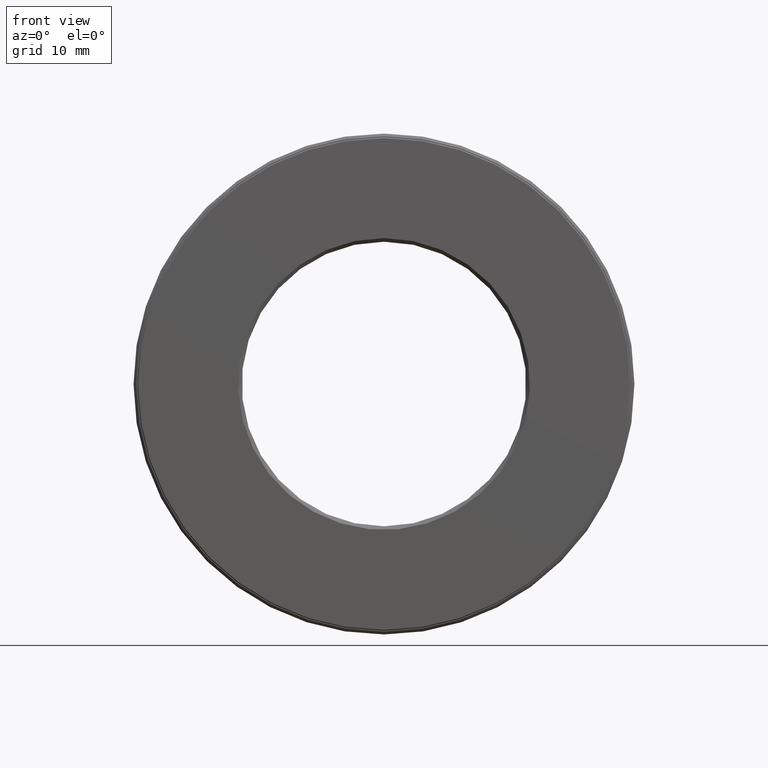
[diagram: clean part render]
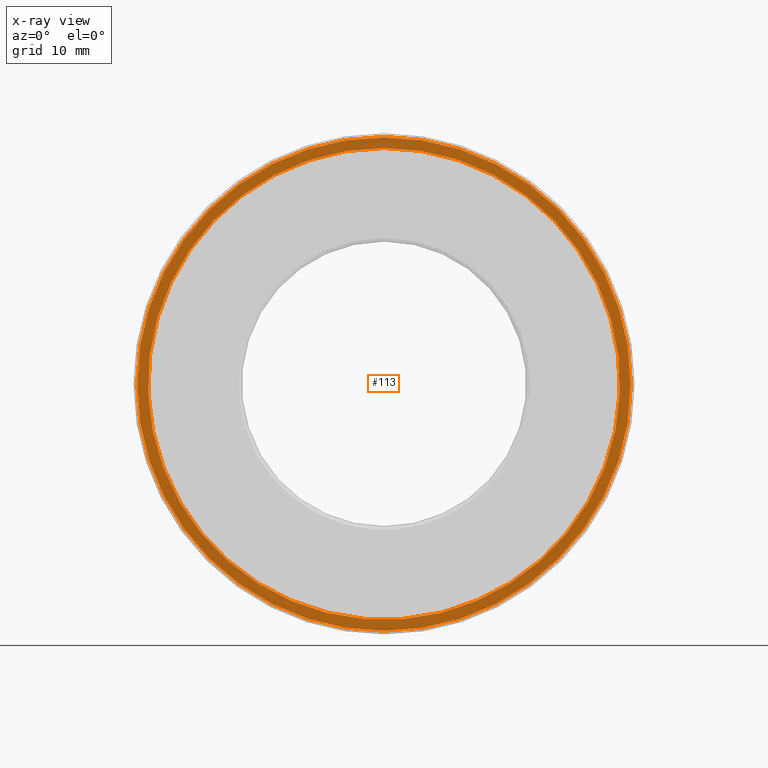
[diagram: x-ray — body ghosted, one internal face saturated and labeled with its STEP entity id]
A machine part, front view, then the same camera in x-ray: the body is ghosted and one INTERNAL B-rep face — a face not visible from any outside direction — is saturated and labeled: STEP entity #113.
In plain terms, the highlighted planar face has unit normal (-0, 1, 0).
Its self-contained STEP definition (entity closure, byte-faithful):
#8 = CARTESIAN_POINT ( 'NONE',  ( 0.0000000000000000000, 0.9649999999999999700, 0.0000000000000000000 ) ) ;
#19 = AXIS2_PLACEMENT_3D ( 'NONE', #368, #547, #544 ) ;
#29 = EDGE_CURVE ( 'NONE', #62, #62, #64, .T. ) ;
#59 = DIRECTION ( 'NONE',  ( -0.0000000000000000000, 1.000000000000000000, -0.0000000000000000000 ) ) ;
#62 = VERTEX_POINT ( 'NONE', #335 ) ;
#63 = DIRECTION ( 'NONE',  ( 0.0000000000000000000, 0.0000000000000000000, 1.000000000000000000 ) ) ;
#64 = CIRCLE ( 'NONE', #295, 1.355000000000000000 ) ;
#113 = ADVANCED_FACE ( 'NONE', ( #545, #479 ), #579, .F. ) ;
#155 = DIRECTION ( 'NONE',  ( 0.0000000000000000000, 0.0000000000000000000, 1.000000000000000000 ) ) ;
#158 = ORIENTED_EDGE ( 'NONE', *, *, #281, .T. ) ;
#184 = CARTESIAN_POINT ( 'NONE',  ( 0.0000000000000000000, 0.9649999999999999700, 1.294999999999999900 ) ) ;
#281 = EDGE_CURVE ( 'NONE', #520, #520, #447, .T. ) ;
#295 = AXIS2_PLACEMENT_3D ( 'NONE', #8, #59, #63 ) ;
#304 = CARTESIAN_POINT ( 'NONE',  ( 0.0000000000000000000, 0.9649999999999999700, 0.0000000000000000000 ) ) ;
#326 = ORIENTED_EDGE ( 'NONE', *, *, #29, .F. ) ;
#335 = CARTESIAN_POINT ( 'NONE',  ( 0.0000000000000000000, 0.9649999999999999700, 1.355000000000000000 ) ) ;
#368 = CARTESIAN_POINT ( 'NONE',  ( 0.0000000000000000000, 0.9649999999999999700, 0.0000000000000000000 ) ) ;
#405 = EDGE_LOOP ( 'NONE', ( #158 ) ) ;
#411 = EDGE_LOOP ( 'NONE', ( #326 ) ) ;
#447 = CIRCLE ( 'NONE', #19, 1.294999999999999900 ) ;
#461 = AXIS2_PLACEMENT_3D ( 'NONE', #304, #535, #155 ) ;
#479 = FACE_BOUND ( 'NONE', #405, .T. ) ;
#520 = VERTEX_POINT ( 'NONE', #184 ) ;
#535 = DIRECTION ( 'NONE',  ( -0.0000000000000000000, 1.000000000000000000, 0.0000000000000000000 ) ) ;
#544 = DIRECTION ( 'NONE',  ( 0.0000000000000000000, 0.0000000000000000000, 1.000000000000000000 ) ) ;
#545 = FACE_OUTER_BOUND ( 'NONE', #411, .T. ) ;
#547 = DIRECTION ( 'NONE',  ( -0.0000000000000000000, 1.000000000000000000, -0.0000000000000000000 ) ) ;
#579 = PLANE ( 'NONE',  #461 ) ;